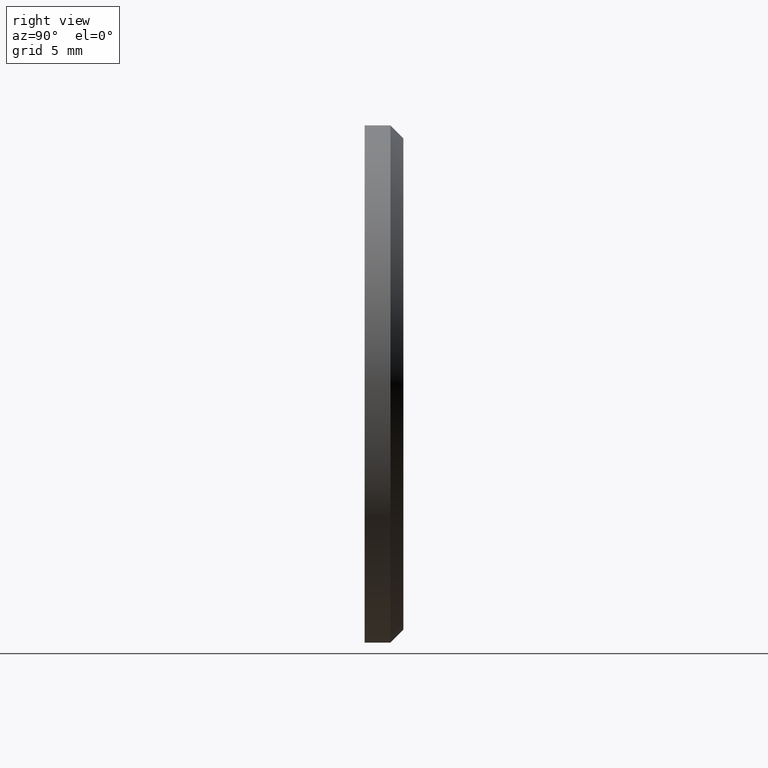
[diagram: clean part render]
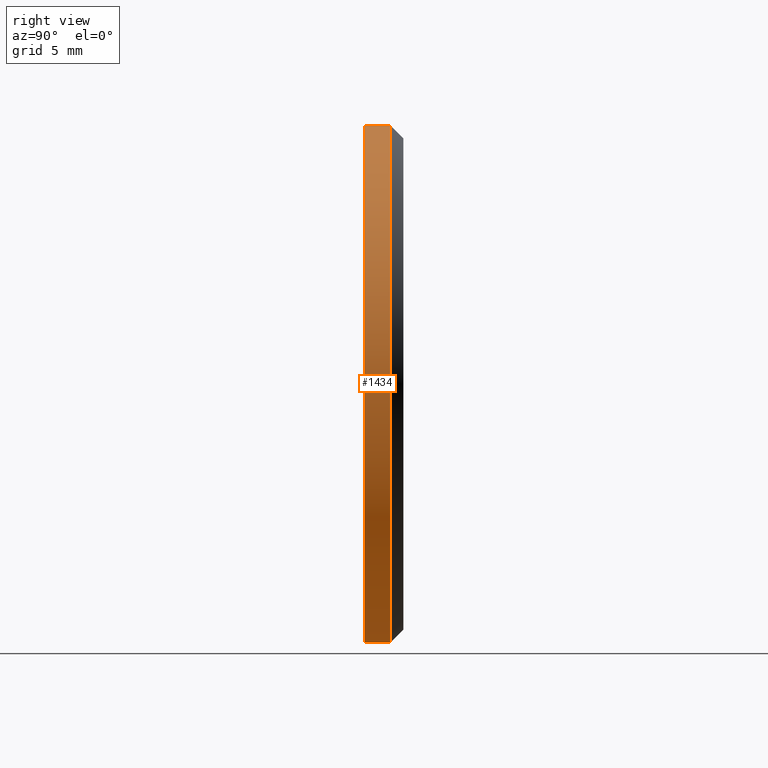
[diagram: same view with one face highlighted and labeled with its STEP entity id]
A machine part, right view. The second image highlights one B-rep face of the part: STEP entity #1434.
In plain terms, the highlighted cylindrical surface (partial cylindrical patch) has radius 20 mm, axis along (-0, -1, -0).
Its self-contained STEP definition (entity closure, byte-faithful):
#179 = DIRECTION ( 'NONE',  ( -0.000000000000000000, -1.000000000000000000, -0.000000000000000000 ) ) ;
#695 = ORIENTED_EDGE ( 'NONE', *, *, #8169, .F. ) ;
#1434 = ADVANCED_FACE ( 'NONE', ( #7333 ), #4775, .T. ) ;
#1440 = AXIS2_PLACEMENT_3D ( 'NONE', #9242, #12685, #10432 ) ;
#1529 = EDGE_CURVE ( 'NONE', #10238, #4373, #2519, .T. ) ;
#1632 = AXIS2_PLACEMENT_3D ( 'NONE', #7727, #179, #11160 ) ;
#2058 = CARTESIAN_POINT ( 'NONE',  ( 0.000000000000000000, 0.000000000000000000, -20.00000000000000000 ) ) ;
#2276 = CARTESIAN_POINT ( 'NONE',  ( 2.449293598294706513E-15, 1.999999999999988676, 20.00000000000000000 ) ) ;
#2519 = CIRCLE ( 'NONE', #1440, 20.00000000000000000 ) ;
#3000 = ORIENTED_EDGE ( 'NONE', *, *, #1529, .T. ) ;
#3329 = LINE ( 'NONE', #7739, #4389 ) ;
#3407 = LINE ( 'NONE', #11917, #9555 ) ;
#3410 = DIRECTION ( 'NONE',  ( 0.000000000000000000, -1.000000000000000000, 0.000000000000000000 ) ) ;
#3703 = DIRECTION ( 'NONE',  ( -0.000000000000000000, -1.000000000000000000, -0.000000000000000000 ) ) ;
#3983 = AXIS2_PLACEMENT_3D ( 'NONE', #7581, #3410, #6586 ) ;
#4373 = VERTEX_POINT ( 'NONE', #2058 ) ;
#4389 = VECTOR ( 'NONE', #3703, 1000.000000000000000 ) ;
#4775 = CYLINDRICAL_SURFACE ( 'NONE', #1632, 20.00000000000000000 ) ;
#4815 = VERTEX_POINT ( 'NONE', #2276 ) ;
#4900 = VERTEX_POINT ( 'NONE', #9025 ) ;
#6586 = DIRECTION ( 'NONE',  ( 0.000000000000000000, 0.000000000000000000, 1.000000000000000000 ) ) ;
#7333 = FACE_OUTER_BOUND ( 'NONE', #8098, .T. ) ;
#7581 = CARTESIAN_POINT ( 'NONE',  ( 0.000000000000000000, 1.999999999999988676, 0.000000000000000000 ) ) ;
#7727 = CARTESIAN_POINT ( 'NONE',  ( 0.000000000000000000, 3.000000000000000000, 0.000000000000000000 ) ) ;
#7739 = CARTESIAN_POINT ( 'NONE',  ( 0.000000000000000000, 3.000000000000000000, -20.00000000000000000 ) ) ;
#8098 = EDGE_LOOP ( 'NONE', ( #8181, #9995, #3000, #695 ) ) ;
#8169 = EDGE_CURVE ( 'NONE', #4900, #4373, #3329, .T. ) ;
#8181 = ORIENTED_EDGE ( 'NONE', *, *, #9627, .T. ) ;
#8869 = CIRCLE ( 'NONE', #3983, 20.00000000000000000 ) ;
#9025 = CARTESIAN_POINT ( 'NONE',  ( 0.000000000000000000, 1.999999999999988676, -20.00000000000000000 ) ) ;
#9242 = CARTESIAN_POINT ( 'NONE',  ( 0.000000000000000000, 0.000000000000000000, 0.000000000000000000 ) ) ;
#9555 = VECTOR ( 'NONE', #12983, 1000.000000000000000 ) ;
#9627 = EDGE_CURVE ( 'NONE', #4900, #4815, #8869, .T. ) ;
#9872 = CARTESIAN_POINT ( 'NONE',  ( 2.449293598294706513E-15, 0.000000000000000000, 20.00000000000000000 ) ) ;
#9995 = ORIENTED_EDGE ( 'NONE', *, *, #13113, .T. ) ;
#10238 = VERTEX_POINT ( 'NONE', #9872 ) ;
#10432 = DIRECTION ( 'NONE',  ( 0.000000000000000000, 0.000000000000000000, 1.000000000000000000 ) ) ;
#11160 = DIRECTION ( 'NONE',  ( 0.000000000000000000, 0.000000000000000000, -1.000000000000000000 ) ) ;
#11917 = CARTESIAN_POINT ( 'NONE',  ( 2.449293598294706513E-15, 3.000000000000000000, 20.00000000000000000 ) ) ;
#12685 = DIRECTION ( 'NONE',  ( 0.000000000000000000, 1.000000000000000000, 0.000000000000000000 ) ) ;
#12983 = DIRECTION ( 'NONE',  ( -0.000000000000000000, -1.000000000000000000, -0.000000000000000000 ) ) ;
#13113 = EDGE_CURVE ( 'NONE', #4815, #10238, #3407, .T. ) ;